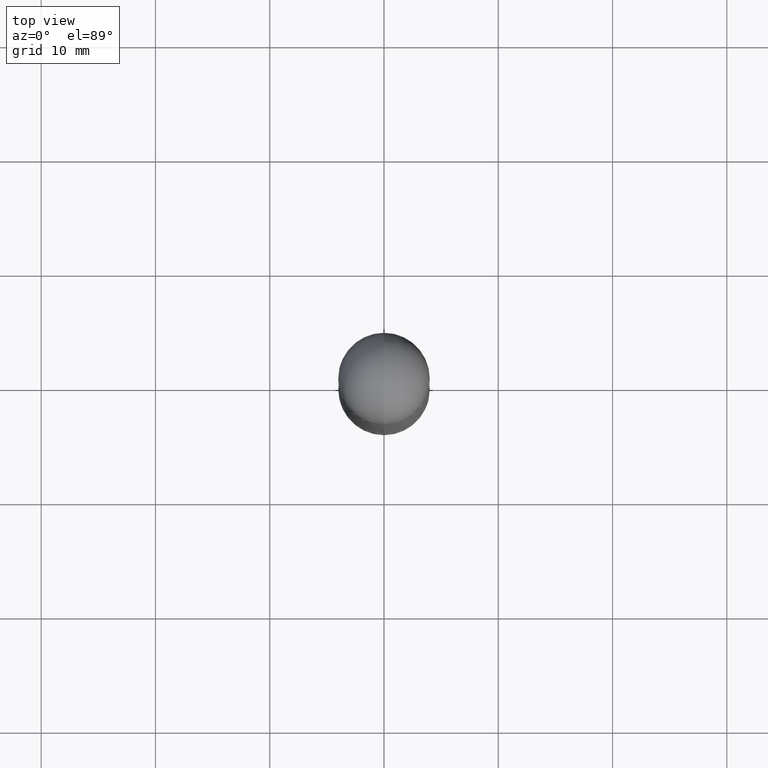
[diagram: clean part render]
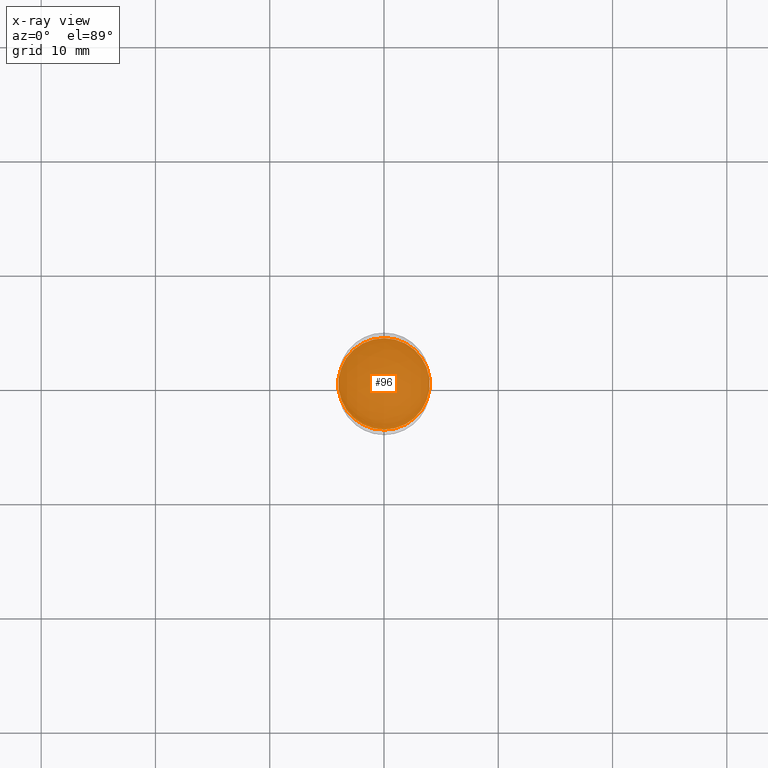
[diagram: x-ray — body ghosted, one internal face saturated and labeled with its STEP entity id]
A machine part, top view, then the same camera in x-ray: the body is ghosted and one INTERNAL B-rep face — a face not visible from any outside direction — is saturated and labeled: STEP entity #96.
In plain terms, the highlighted planar face has unit normal (0, 0, 1).
Its self-contained STEP definition (entity closure, byte-faithful):
#3 = CARTESIAN_POINT ( 'NONE',  ( 3.032892176180250989E-29, -4.329754314344569209E-15, -1.240150000000000086 ) ) ;
#38 = CIRCLE ( 'NONE', #424, 0.1575000000000001399 ) ;
#81 = CARTESIAN_POINT ( 'NONE',  ( 3.032892176180250989E-29, -4.329754314344569209E-15, -1.240150000000000086 ) ) ;
#96 = ADVANCED_FACE ( 'NONE', ( #421 ), #277, .F. ) ;
#101 = CARTESIAN_POINT ( 'NONE',  ( -1.099816621735547840E-15, -0.1575000000000044698, -1.240150000000000086 ) ) ;
#161 = VERTEX_POINT ( 'NONE', #280 ) ;
#179 = EDGE_LOOP ( 'NONE', ( #496, #753 ) ) ;
#219 = DIRECTION ( 'NONE',  ( 0.000000000000000000, 0.000000000000000000, 1.000000000000000000 ) ) ;
#231 = EDGE_CURVE ( 'NONE', #161, #528, #38, .T. ) ;
#277 = PLANE ( 'NONE',  #761 ) ;
#280 = CARTESIAN_POINT ( 'NONE',  ( 1.080528434649065872E-15, 0.1574999999999957823, -1.240150000000000086 ) ) ;
#301 = CARTESIAN_POINT ( 'NONE',  ( 0.000000000000000000, 0.000000000000000000, -1.240150000000000086 ) ) ;
#325 = AXIS2_PLACEMENT_3D ( 'NONE', #3, #504, #445 ) ;
#330 = DIRECTION ( 'NONE',  ( -1.000000000000000000, 0.000000000000000000, 0.000000000000000000 ) ) ;
#344 = DIRECTION ( 'NONE',  ( -1.000000000000000000, 0.000000000000000000, 0.000000000000000000 ) ) ;
#347 = EDGE_CURVE ( 'NONE', #528, #161, #376, .T. ) ;
#376 = CIRCLE ( 'NONE', #325, 0.1575000000000001399 ) ;
#385 = DIRECTION ( 'NONE',  ( -0.000000000000000000, -0.000000000000000000, -1.000000000000000000 ) ) ;
#421 = FACE_OUTER_BOUND ( 'NONE', #179, .T. ) ;
#424 = AXIS2_PLACEMENT_3D ( 'NONE', #81, #385, #330 ) ;
#445 = DIRECTION ( 'NONE',  ( -1.000000000000000000, 0.000000000000000000, 0.000000000000000000 ) ) ;
#496 = ORIENTED_EDGE ( 'NONE', *, *, #347, .T. ) ;
#504 = DIRECTION ( 'NONE',  ( -0.000000000000000000, -0.000000000000000000, -1.000000000000000000 ) ) ;
#528 = VERTEX_POINT ( 'NONE', #101 ) ;
#753 = ORIENTED_EDGE ( 'NONE', *, *, #231, .T. ) ;
#761 = AXIS2_PLACEMENT_3D ( 'NONE', #301, #219, #344 ) ;